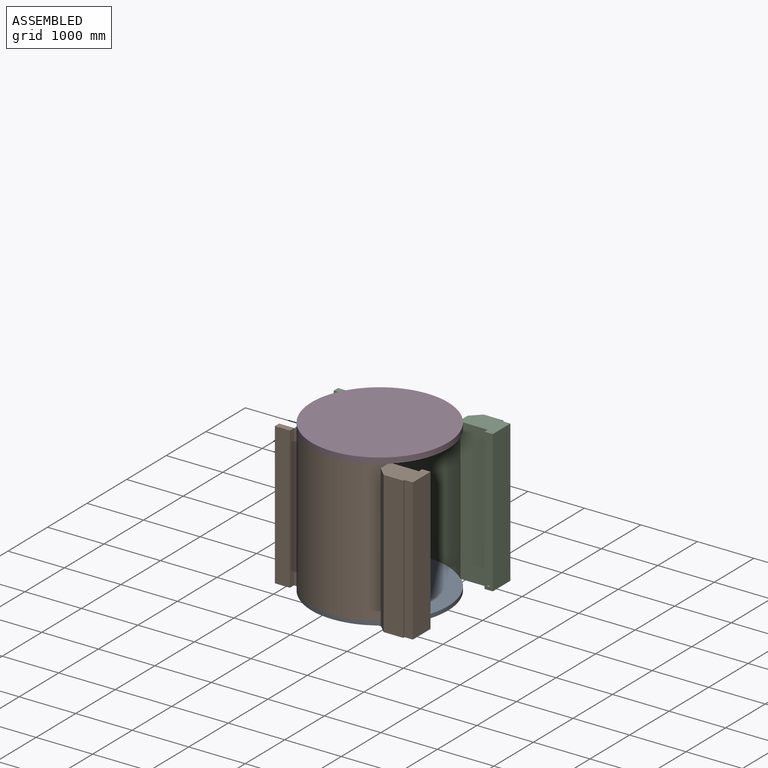
[diagram: assembled view]
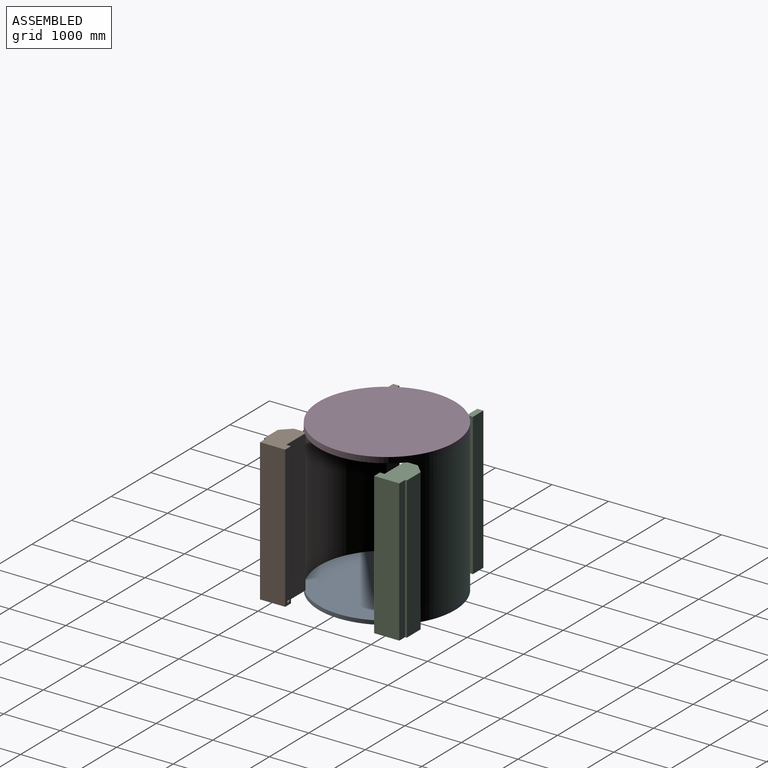
[diagram: assembled view, second angle]
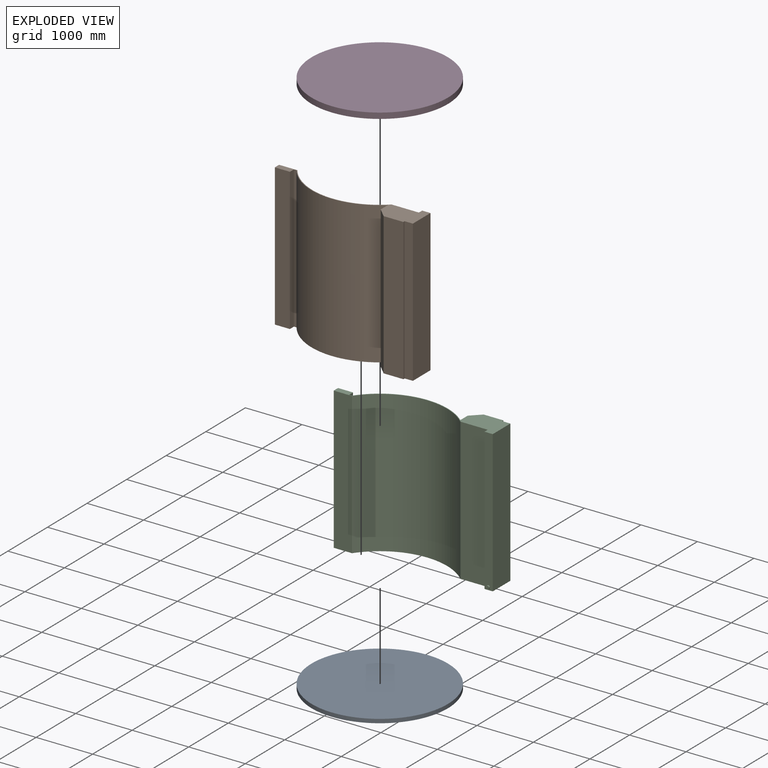
[diagram: exploded view]
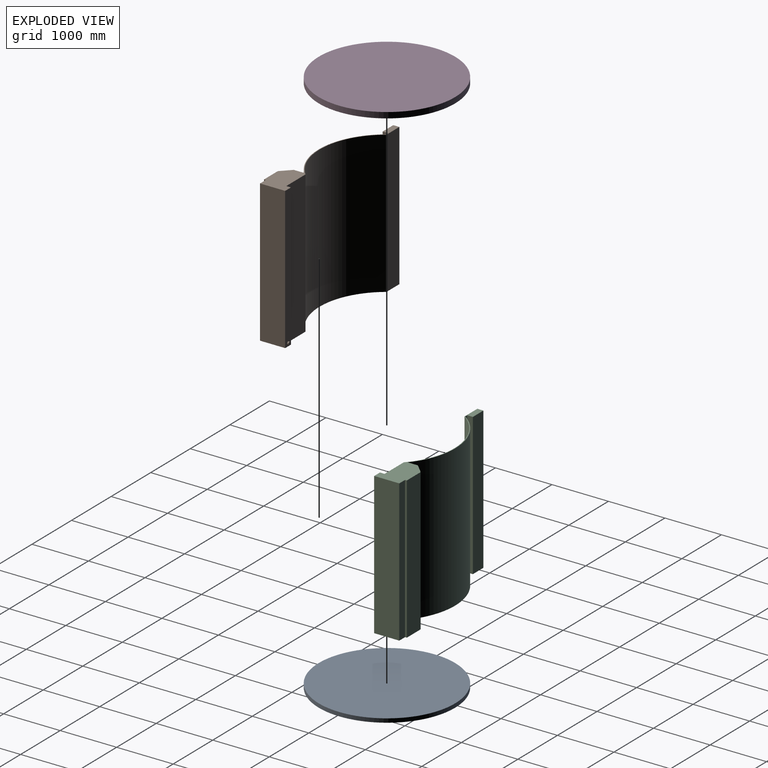
[diagram: exploded view, second angle]
ASSEMBLY  parts=4 mates=3
PART A: 3 faces, bbox 2413x2413x69.9 mm
  f0: cylinder r=1206.5mm len=2413mm, axis (0,0,-1), area 529509.3mm2, adj f1,f2
  f1: plane 2413x2413mm, normal (0,0,1), area 4573035mm2, adj f0
  f2: plane 2413x2413mm, normal (0,0,-1), area 4573035mm2, adj f0
PART B: 20 faces, bbox 2746.4x573.6x2514.6 mm
  f0: plane 2514.6x101.6mm, normal (1,0,0), area 255483.4mm2, adj f1,f15,f16,f17
  f1: plane 2514.6x46.67mm, normal (0,-1,0), area 117348.8mm2, adj f0,f2,f16,f17
  f2: cylinder r=1206.5mm len=2514.6mm, axis (0,0,-1), area 5050357.1mm2, adj f1,f3,f16,f17
  f3: plane 2514.6x182.59mm, normal (-1,0,0), area 459131.5mm2, adj f2,f4,f16,f17
  f4: plane 2514.6x166.8mm, normal (-0.7,-0.71,0), area 590805.3mm2, adj f3,f5,f16,f17
  f5: plane 2514.6x349.25mm, normal (0,-1,0), area 878224.1mm2, adj f4,f6,f16,f17
  f6: plane 2514.6x31.75mm, normal (1,0,0), area 79838.5mm2, adj f5,f7,f16,f17
  f7: plane 2514.6x146.05mm, normal (0,-1,0), area 367257.3mm2, adj f6,f8,f16,f17
  f8: plane 2514.6x444.5mm, normal (1,0,0), area 1117739.7mm2, adj f7,f9,f16,f17
  f9: plane 2514.6x146.05mm, normal (0,1,0), area 364969.2mm2, adj f8,f10,f16,f17,f18
  f10: plane 2514.6x82.55mm, normal (-1,0,0), area 207580.2mm2, adj f9,f11,f16,f17
  f11: plane 2514.6x484.23mm, normal (0,1,0), area 1217634.8mm2, adj f10,f12,f16,f17
  f12: cylinder r=1193.8mm len=2514.6mm, axis (0,0,-1), area 5129700.5mm2, adj f11,f13,f16,f17
  f13: plane 2514.6x324.43mm, normal (0,1,0), area 815815.8mm2, adj f12,f14,f16,f17
  f14: plane 2514.6x107.95mm, normal (-1,0,0), area 271451.1mm2, adj f13,f15,f16,f17
  f15: plane 2514.6x266.7mm, normal (0,-1,0), area 670643.8mm2, adj f0,f14,f16,f17
  f16: plane 2746.38x573.58mm, normal (0,0,1), area 308379.9mm2, adj f0,f1,f2,f3,f4,f5,f6,f7
  f17: plane 2746.38x573.58mm, normal (0,0,-1), area 308379.9mm2, adj f0,f1,f2,f3,f4,f5,f6,f7
  f18: cylinder r=26.99mm len=53.98mm, axis (0,-1,0), area 4307mm2, adj f9,f19
  f19: plane 53.98x53.98mm, normal (0,1,0), area 2288.1mm2, adj f18
PART C: 21 faces, bbox 2746.4x573.6x2514.6 mm
  f0: cylinder r=1206.5mm len=2514.6mm, axis (0,0,-1), area 5050357.1mm2, adj f1,f16,f17,f18
  f1: plane 2514.6x46.67mm, normal (0,1,0), area 117348.8mm2, adj f0,f2,f17,f18
  f2: plane 2514.6x101.6mm, normal (1,0,0), area 255483.4mm2, adj f1,f3,f17,f18
  f3: plane 2514.6x266.7mm, normal (0,1,0), area 670643.8mm2, adj f2,f4,f17,f18
  f4: plane 2514.6x107.95mm, normal (-1,0,0), area 271451.1mm2, adj f3,f5,f17,f18
  f5: plane 2514.6x324.43mm, normal (0,-1,0), area 815815.8mm2, adj f4,f6,f17,f18
  f6: cylinder r=1193.8mm len=2514.6mm, axis (0,0,-1), area 5125344.2mm2, adj f5,f7,f17,f18
  f7: plane 2514.6x19.7mm, normal (-0.06,-1,0), area 49625.7mm2, adj f6,f8,f17,f18
  f8: plane 2514.6x465.79mm, normal (0,-1,0), area 1171275.3mm2, adj f7,f9,f17,f18
  f9: plane 2514.6x82.55mm, normal (-1,0,0), area 207580.2mm2, adj f8,f10,f17,f18
  f10: plane 2514.6x146.05mm, normal (0,-1,0), area 364969.2mm2, adj f9,f11,f17,f18,f19
  f11: plane 2514.6x444.5mm, normal (1,0,0), area 1117739.7mm2, adj f10,f12,f17,f18
  f12: plane 2514.6x146.05mm, normal (0,1,0), area 367257.3mm2, adj f11,f13,f17,f18
  f13: plane 2514.6x31.75mm, normal (1,0,0), area 79838.6mm2, adj f12,f14,f17,f18
  f14: plane 2514.6x349.25mm, normal (0,1,0), area 878224.1mm2, adj f13,f15,f17,f18
  f15: plane 2514.6x166.8mm, normal (-0.7,0.71,0), area 590805.3mm2, adj f14,f16,f17,f18
  f16: plane 2514.6x182.59mm, normal (-1,0,0), area 459131.5mm2, adj f0,f15,f17,f18
  f17: plane 2746.38x573.58mm, normal (0,0,1), area 308368.9mm2, adj f0,f1,f2,f3,f4,f5,f6,f7
  f18: plane 2746.38x573.58mm, normal (0,0,-1), area 308368.9mm2, adj f0,f1,f2,f3,f4,f5,f6,f7
  f19: cylinder r=26.99mm len=53.98mm, axis (0,1,0), area 4307mm2, adj f10,f20
  f20: plane 53.98x53.98mm, normal (0,-1,0), area 2288.1mm2, adj f19
PART D: 3 faces, bbox 2413x2413x101.6 mm
  f0: cylinder r=1206.5mm len=2413mm, axis (0,0,-1), area 770195.4mm2, adj f1,f2
  f1: plane 2413x2413mm, normal (0,0,1), area 4573035mm2, adj f0
  f2: plane 2413x2413mm, normal (0,0,-1), area 4573035mm2, adj f0
PLACE A t=(-10506.46,-1655.05,-1396.28)mm
PLACE B t=(-2997.21,2441.05,-1326.43)mm
PLACE C t=(-2997.21,2441.05,-1326.43)mm
PLACE D t=(-7079.15,-445.5,1188.17)mm
MATE fastened B.f2 <-> D.f0  axis (0,0,1) through (-803.38,1120.78,1188.17)mm
MATE fastened A.f0 <-> B.f2  axis (0,0,1) through (-803.38,1120.78,-1326.43)mm
MATE fastened C.f0 <-> D.f0  axis (0,0,1) through (-803.38,1120.78,1188.17)mm
